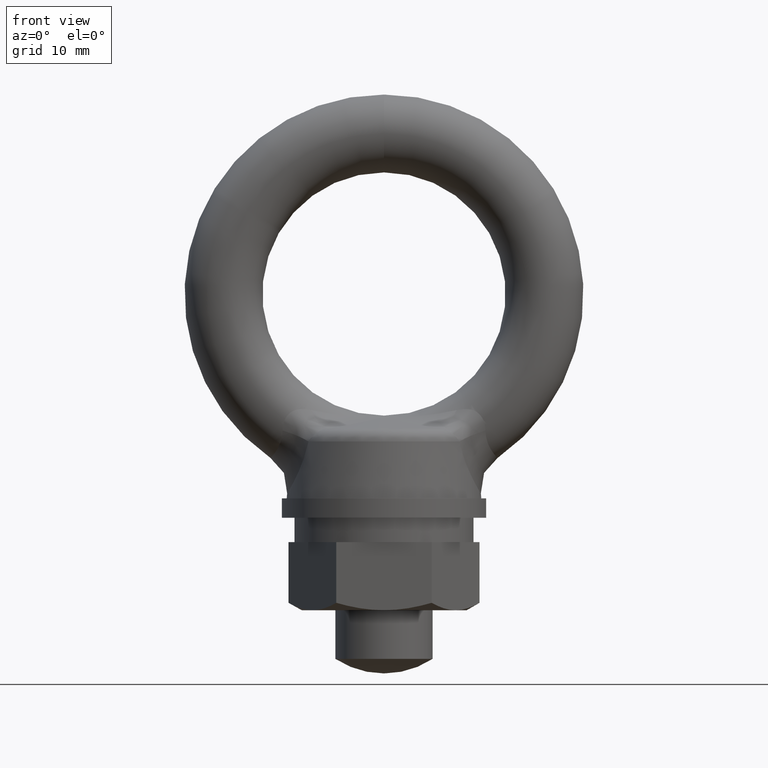
[diagram: clean part render]
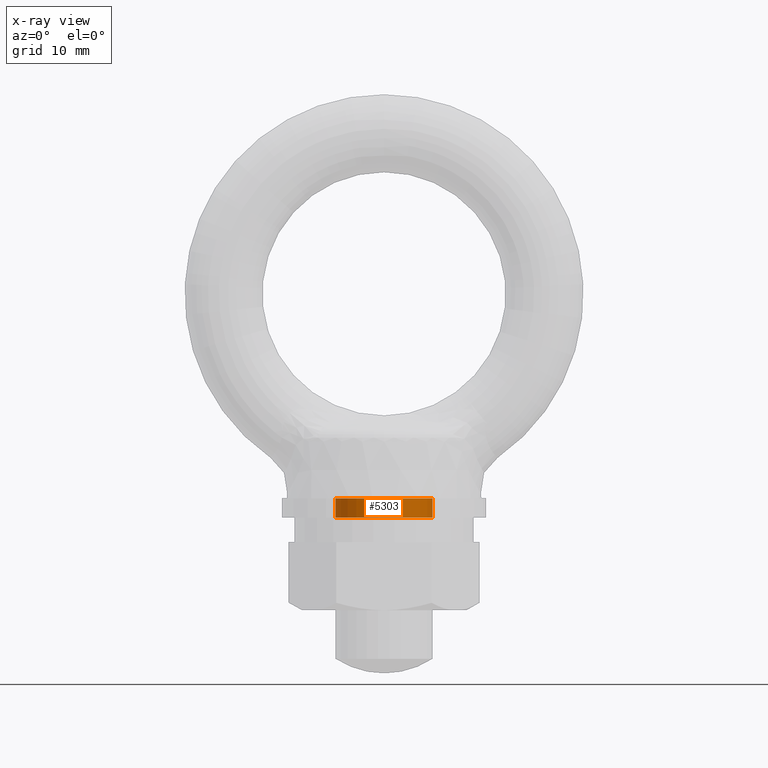
[diagram: x-ray — body ghosted, one internal face saturated and labeled with its STEP entity id]
A machine part, front view, then the same camera in x-ray: the body is ghosted and one INTERNAL B-rep face — a face not visible from any outside direction — is saturated and labeled: STEP entity #5303.
In plain terms, the highlighted cylindrical surface (partial cylindrical patch) has radius 5 mm, axis along (0, 0, -1).
Its self-contained STEP definition (entity closure, byte-faithful):
#1343 = CARTESIAN_POINT ( 'NONE',  ( -5.000000000000000000, 0.0000000000000000000, -21.00000000000000000 ) ) ;
#1344 = CARTESIAN_POINT ( 'NONE',  ( 5.000000000000000000, 6.123031769111886300E-016, -21.00000000000000000 ) ) ;
#1357 = LINE ( 'NONE', #1506, #1505 ) ;
#1358 = CARTESIAN_POINT ( 'NONE',  ( -5.000000000000000000, 0.0000000000000000000, -23.00000000000000000 ) ) ;
#1359 = DIRECTION ( 'NONE',  ( 1.000000000000000000, 0.0000000000000000000, 0.0000000000000000000 ) ) ;
#1360 = DIRECTION ( 'NONE',  ( 0.0000000000000000000, 0.0000000000000000000, -1.000000000000000000 ) ) ;
#1361 = CARTESIAN_POINT ( 'NONE',  ( 0.0000000000000000000, 0.0000000000000000000, -23.00000000000000000 ) ) ;
#1362 = AXIS2_PLACEMENT_3D ( 'NONE', #1361, #1360, #1359 ) ;
#1363 = CIRCLE ( 'NONE', #1362, 5.000000000000000000 ) ;
#1364 = CARTESIAN_POINT ( 'NONE',  ( 5.000000000000000000, 6.123031769111886300E-016, -23.00000000000000000 ) ) ;
#1365 = DIRECTION ( 'NONE',  ( 0.0000000000000000000, 0.0000000000000000000, -1.000000000000000000 ) ) ;
#1366 = VECTOR ( 'NONE', #1365, 1000.000000000000000 ) ;
#1367 = CARTESIAN_POINT ( 'NONE',  ( 5.000000000000000000, 6.123031769111886300E-016, 977.0000000000000000 ) ) ;
#1368 = LINE ( 'NONE', #1367, #1366 ) ;
#1504 = DIRECTION ( 'NONE',  ( 0.0000000000000000000, 0.0000000000000000000, -1.000000000000000000 ) ) ;
#1505 = VECTOR ( 'NONE', #1504, 1000.000000000000000 ) ;
#1506 = CARTESIAN_POINT ( 'NONE',  ( -5.000000000000000000, 0.0000000000000000000, 977.0000000000000000 ) ) ;
#1909 = DIRECTION ( 'NONE',  ( 0.0000000000000000000, 0.0000000000000000000, -1.000000000000000000 ) ) ;
#1943 = AXIS2_PLACEMENT_3D ( 'NONE', #1947, #1909, #2067 ) ;
#1944 = CYLINDRICAL_SURFACE ( 'NONE', #1943, 5.000000000000000000 ) ;
#1947 = CARTESIAN_POINT ( 'NONE',  ( 0.0000000000000000000, 0.0000000000000000000, 977.0000000000000000 ) ) ;
#2019 = FACE_OUTER_BOUND ( 'NONE', #5204, .T. ) ;
#2067 = DIRECTION ( 'NONE',  ( -1.000000000000000000, 0.0000000000000000000, 0.0000000000000000000 ) ) ;
#2101 = DIRECTION ( 'NONE',  ( 0.0000000000000000000, 0.0000000000000000000, -1.000000000000000000 ) ) ;
#2133 = AXIS2_PLACEMENT_3D ( 'NONE', #2134, #2101, #2176 ) ;
#2134 = CARTESIAN_POINT ( 'NONE',  ( 0.0000000000000000000, 0.0000000000000000000, -21.00000000000000000 ) ) ;
#2158 = CIRCLE ( 'NONE', #2133, 5.000000000000000000 ) ;
#2176 = DIRECTION ( 'NONE',  ( 1.000000000000000000, 0.0000000000000000000, 0.0000000000000000000 ) ) ;
#5145 = VERTEX_POINT ( 'NONE', #1344 ) ;
#5146 = VERTEX_POINT ( 'NONE', #1343 ) ;
#5159 = ORIENTED_EDGE ( 'NONE', *, *, #5160, .T. ) ;
#5160 = EDGE_CURVE ( 'NONE', #5145, #5161, #1368, .T. ) ;
#5161 = VERTEX_POINT ( 'NONE', #1364 ) ;
#5162 = ORIENTED_EDGE ( 'NONE', *, *, #5163, .T. ) ;
#5163 = EDGE_CURVE ( 'NONE', #5161, #5164, #1363, .T. ) ;
#5164 = VERTEX_POINT ( 'NONE', #1358 ) ;
#5165 = ORIENTED_EDGE ( 'NONE', *, *, #5166, .F. ) ;
#5166 = EDGE_CURVE ( 'NONE', #5146, #5164, #1357, .T. ) ;
#5204 = EDGE_LOOP ( 'NONE', ( #5304, #5159, #5162, #5165 ) ) ;
#5303 = ADVANCED_FACE ( 'NONE', ( #2019 ), #1944, .F. ) ;
#5304 = ORIENTED_EDGE ( 'NONE', *, *, #5305, .F. ) ;
#5305 = EDGE_CURVE ( 'NONE', #5145, #5146, #2158, .T. ) ;